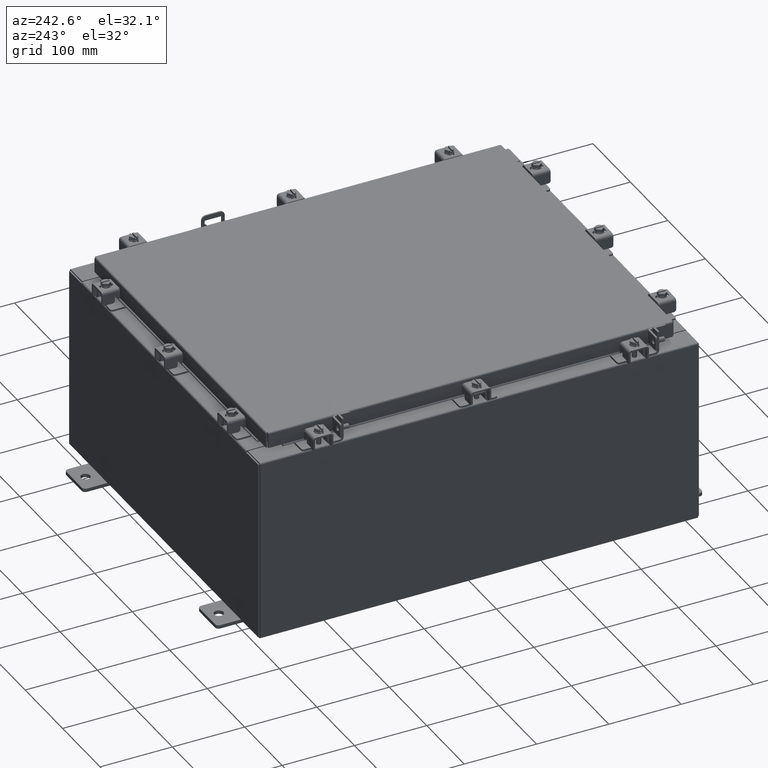
[diagram: clean part render]
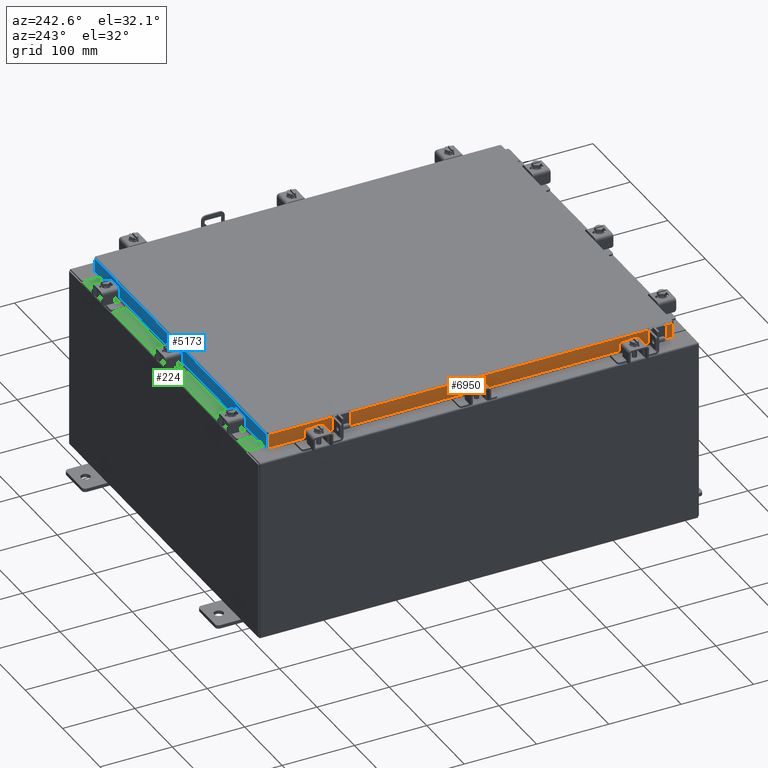
[diagram: same view with three faces highlighted in distinct colors, each labeled with its STEP entity id]
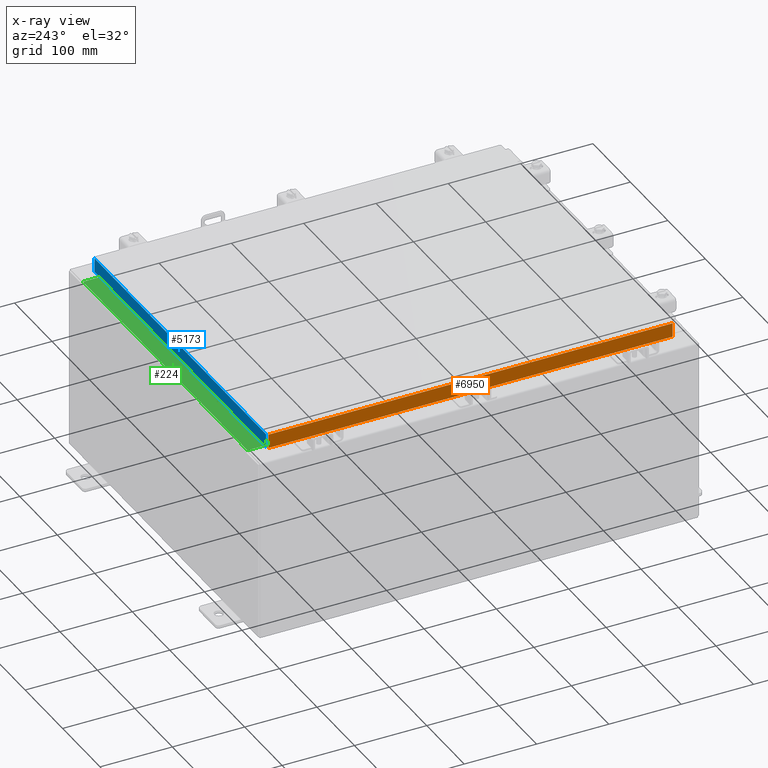
[diagram: x-ray of the same camera — body ghosted, the three highlighted faces saturated]
A machine part, auxiliary view with three faces highlighted in distinct colors.
The next image is the same camera in x-ray (body ghosted, the three faces saturated) — at least one of them is partly hidden behind the body in this view.
Their STEP definitions:

[orange] entity #6950 — the highlighted planar face has unit normal (1, 0, -0).
#296 = EDGE_CURVE ( 'NONE', #16430, #1244, #375, .T. ) ;
#297 = LINE ( 'NONE', #8508, #12650 ) ;
#375 = LINE ( 'NONE', #1042, #4153 ) ;
#773 = ORIENTED_EDGE ( 'NONE', *, *, #6685, .F. ) ;
#968 = CARTESIAN_POINT ( 'NONE',  ( -9.094000000000001200, -11.00515786437626700, -0.07470000000000015500 ) ) ;
#1042 = CARTESIAN_POINT ( 'NONE',  ( -9.093999999999995900, -10.25515786437626900, -0.8499999999999999800 ) ) ;
#1244 = VERTEX_POINT ( 'NONE', #10325 ) ;
#1269 = DIRECTION ( 'NONE',  ( 4.379057701015054300E-047, 1.000000000000000000, 1.169666303398706600E-016 ) ) ;
#1846 = CARTESIAN_POINT ( 'NONE',  ( -9.094000000000004700, -11.00515786437626200, -0.8499999999999999800 ) ) ;
#1943 = CARTESIAN_POINT ( 'NONE',  ( -9.094000000000001200, -11.00515786437626900, -0.08770000000000026400 ) ) ;
#2232 = CARTESIAN_POINT ( 'NONE',  ( -9.094000000000004700, -11.09400000000000100, -0.8499999999999999800 ) ) ;
#2554 = DIRECTION ( 'NONE',  ( 1.000000000000000000, 3.297150052053607100E-031, -2.818880942772360100E-015 ) ) ;
#2573 = DIRECTION ( 'NONE',  ( -2.818880942772360100E-015, 6.982962677686267500E-015, -1.000000000000000000 ) ) ;
#2717 = EDGE_CURVE ( 'NONE', #1244, #13236, #3496, .T. ) ;
#2952 = VERTEX_POINT ( 'NONE', #17685 ) ;
#3075 = EDGE_CURVE ( 'NONE', #2952, #13236, #3370, .T. ) ;
#3370 = LINE ( 'NONE', #10121, #3896 ) ;
#3496 = LINE ( 'NONE', #2232, #20074 ) ;
#3661 = DIRECTION ( 'NONE',  ( -0.0000000000000000000, 1.000000000000000000, -0.0000000000000000000 ) ) ;
#3896 = VECTOR ( 'NONE', #9876, 39.37007874015748100 ) ;
#4153 = VECTOR ( 'NONE', #3661, 39.37007874015748100 ) ;
#4170 = EDGE_CURVE ( 'NONE', #17787, #20709, #15419, .T. ) ;
#5703 = ORIENTED_EDGE ( 'NONE', *, *, #4170, .F. ) ;
#6685 = EDGE_CURVE ( 'NONE', #20709, #16430, #8920, .T. ) ;
#6950 = ADVANCED_FACE ( 'NONE', ( #9167 ), #15324, .F. ) ;
#8385 = EDGE_CURVE ( 'NONE', #2952, #17787, #297, .T. ) ;
#8400 = VECTOR ( 'NONE', #14547, 39.37007874015748100 ) ;
#8508 = CARTESIAN_POINT ( 'NONE',  ( -9.094000000000001200, -11.09399999999999900, -0.08770000000000026400 ) ) ;
#8920 = LINE ( 'NONE', #19341, #8400 ) ;
#9167 = FACE_OUTER_BOUND ( 'NONE', #15842, .T. ) ;
#9876 = DIRECTION ( 'NONE',  ( -2.818880942772360100E-015, 6.982962677686267500E-015, -1.000000000000000000 ) ) ;
#10121 = CARTESIAN_POINT ( 'NONE',  ( -9.094000000000001200, 11.00515786437626900, 1.027174845617763000E-013 ) ) ;
#10325 = CARTESIAN_POINT ( 'NONE',  ( -9.093999999999995900, 10.25515786437626900, -0.8499999999999999800 ) ) ;
#10713 = VECTOR ( 'NONE', #2573, 39.37007874015748100 ) ;
#11306 = AXIS2_PLACEMENT_3D ( 'NONE', #12233, #2554, #13787 ) ;
#12233 = CARTESIAN_POINT ( 'NONE',  ( -9.094000000000001200, 0.0000000000000000000, 2.622574073917692700E-014 ) ) ;
#12650 = VECTOR ( 'NONE', #18080, 39.37007874015748100 ) ;
#13236 = VERTEX_POINT ( 'NONE', #13474 ) ;
#13474 = CARTESIAN_POINT ( 'NONE',  ( -9.094000000000004700, 11.00515786437627400, -0.8499999999999977600 ) ) ;
#13787 = DIRECTION ( 'NONE',  ( -2.818880942772360100E-015, 0.0000000000000000000, -1.000000000000000000 ) ) ;
#14059 = ORIENTED_EDGE ( 'NONE', *, *, #2717, .F. ) ;
#14547 = DIRECTION ( 'NONE',  ( 4.379057701015054300E-047, 1.000000000000000000, 1.169666303398706600E-016 ) ) ;
#15324 = PLANE ( 'NONE',  #11306 ) ;
#15419 = LINE ( 'NONE', #968, #10713 ) ;
#15842 = EDGE_LOOP ( 'NONE', ( #20442, #17668, #14059, #18491, #773, #5703 ) ) ;
#16056 = CARTESIAN_POINT ( 'NONE',  ( -9.093999999999995900, -10.25515786437626900, -0.8499999999999999800 ) ) ;
#16430 = VERTEX_POINT ( 'NONE', #16056 ) ;
#17668 = ORIENTED_EDGE ( 'NONE', *, *, #3075, .T. ) ;
#17685 = CARTESIAN_POINT ( 'NONE',  ( -9.094000000000001200, 11.00515786437626900, -0.08770000000000026400 ) ) ;
#17787 = VERTEX_POINT ( 'NONE', #1943 ) ;
#18080 = DIRECTION ( 'NONE',  ( 3.297150052053607100E-031, -1.000000000000000000, -8.987264781119274900E-046 ) ) ;
#18491 = ORIENTED_EDGE ( 'NONE', *, *, #296, .F. ) ;
#19341 = CARTESIAN_POINT ( 'NONE',  ( -9.094000000000004700, -11.09400000000000100, -0.8499999999999999800 ) ) ;
#20074 = VECTOR ( 'NONE', #1269, 39.37007874015748100 ) ;
#20442 = ORIENTED_EDGE ( 'NONE', *, *, #8385, .F. ) ;
#20709 = VERTEX_POINT ( 'NONE', #1846 ) ;

[blue] entity #5173 — the highlighted planar face has unit normal (0, -1, -0).
#264 = DIRECTION ( 'NONE',  ( 1.000000000000000000, -4.379057701015053300E-047, 1.201604571657912200E-016 ) ) ;
#475 = CARTESIAN_POINT ( 'NONE',  ( -9.094000000000001200, 11.09400000000000300, -0.8500000000000020900 ) ) ;
#1934 = VECTOR ( 'NONE', #16373, 39.37007874015748100 ) ;
#3690 = DIRECTION ( 'NONE',  ( 1.000000000000000000, -4.379057701015053300E-047, 1.201604571657912200E-016 ) ) ;
#4083 = CARTESIAN_POINT ( 'NONE',  ( 9.005157864376267100, 11.09400000000000300, -0.8499999999999999800 ) ) ;
#4095 = ORIENTED_EDGE ( 'NONE', *, *, #13194, .F. ) ;
#4192 = LINE ( 'NONE', #17691, #9011 ) ;
#4323 = FACE_OUTER_BOUND ( 'NONE', #11540, .T. ) ;
#5086 = CARTESIAN_POINT ( 'NONE',  ( -9.005157864376268900, 11.09400000000000100, -0.08770000000000026400 ) ) ;
#5173 = ADVANCED_FACE ( 'NONE', ( #4323 ), #15070, .F. ) ;
#7029 = VECTOR ( 'NONE', #15330, 39.37007874015748100 ) ;
#7076 = DIRECTION ( 'NONE',  ( 0.0000000000000000000, 2.818880942772352600E-015, -1.000000000000000000 ) ) ;
#7599 = LINE ( 'NONE', #11769, #18884 ) ;
#9011 = VECTOR ( 'NONE', #19308, 39.37007874015748100 ) ;
#9137 = LINE ( 'NONE', #13081, #16625 ) ;
#9316 = EDGE_CURVE ( 'NONE', #20093, #15526, #11379, .T. ) ;
#10297 = CARTESIAN_POINT ( 'NONE',  ( 0.0000000000000000000, 11.09400000000000100, 3.059669752903974500E-014 ) ) ;
#10309 = ORIENTED_EDGE ( 'NONE', *, *, #19392, .F. ) ;
#10344 = CARTESIAN_POINT ( 'NONE',  ( 8.255157864376263500, 11.09399999999999900, -0.8500000000000065300 ) ) ;
#10544 = CARTESIAN_POINT ( 'NONE',  ( -9.005157864376268900, 11.09400000000000100, -0.07470000000000015500 ) ) ;
#10708 = VECTOR ( 'NONE', #3690, 39.37007874015748100 ) ;
#11375 = EDGE_CURVE ( 'NONE', #12790, #12113, #4192, .T. ) ;
#11379 = LINE ( 'NONE', #10544, #7029 ) ;
#11540 = EDGE_LOOP ( 'NONE', ( #4095, #14415, #17455, #12621, #10309, #16494 ) ) ;
#11769 = CARTESIAN_POINT ( 'NONE',  ( -9.094000000000001200, 11.09400000000000100, -0.08770000000000026400 ) ) ;
#12113 = VERTEX_POINT ( 'NONE', #10344 ) ;
#12621 = ORIENTED_EDGE ( 'NONE', *, *, #11375, .F. ) ;
#12790 = VERTEX_POINT ( 'NONE', #13638 ) ;
#13081 = CARTESIAN_POINT ( 'NONE',  ( -9.094000000000001200, 11.09400000000000300, -0.8500000000000020900 ) ) ;
#13097 = EDGE_CURVE ( 'NONE', #12113, #15820, #9137, .T. ) ;
#13194 = EDGE_CURVE ( 'NONE', #13839, #20093, #7599, .T. ) ;
#13638 = CARTESIAN_POINT ( 'NONE',  ( -8.255157864376267100, 11.09399999999999900, -0.8500000000000065300 ) ) ;
#13839 = VERTEX_POINT ( 'NONE', #15979 ) ;
#14415 = ORIENTED_EDGE ( 'NONE', *, *, #15632, .T. ) ;
#14727 = LINE ( 'NONE', #19601, #1934 ) ;
#14888 = LINE ( 'NONE', #475, #10708 ) ;
#15070 = PLANE ( 'NONE',  #16917 ) ;
#15330 = DIRECTION ( 'NONE',  ( -0.0000000000000000000, 2.818880942772352600E-015, -1.000000000000000000 ) ) ;
#15526 = VERTEX_POINT ( 'NONE', #19328 ) ;
#15632 = EDGE_CURVE ( 'NONE', #13839, #15820, #14727, .T. ) ;
#15820 = VERTEX_POINT ( 'NONE', #4083 ) ;
#15979 = CARTESIAN_POINT ( 'NONE',  ( 9.005157864376267100, 11.09400000000000100, -0.08770000000000245700 ) ) ;
#16373 = DIRECTION ( 'NONE',  ( 0.0000000000000000000, 2.818880942772352600E-015, -1.000000000000000000 ) ) ;
#16494 = ORIENTED_EDGE ( 'NONE', *, *, #9316, .F. ) ;
#16625 = VECTOR ( 'NONE', #264, 39.37007874015748100 ) ;
#16715 = DIRECTION ( 'NONE',  ( 3.387180227794624200E-031, -1.000000000000000000, -2.818880942772352600E-015 ) ) ;
#16917 = AXIS2_PLACEMENT_3D ( 'NONE', #10297, #16715, #7076 ) ;
#17455 = ORIENTED_EDGE ( 'NONE', *, *, #13097, .F. ) ;
#17691 = CARTESIAN_POINT ( 'NONE',  ( -8.255157864376267100, 11.09399999999999900, -0.8500000000000065300 ) ) ;
#18077 = DIRECTION ( 'NONE',  ( -1.000000000000000000, -6.774360455589248400E-031, 1.201604571657912200E-016 ) ) ;
#18884 = VECTOR ( 'NONE', #18077, 39.37007874015748100 ) ;
#19308 = DIRECTION ( 'NONE',  ( 1.000000000000000000, -0.0000000000000000000, -0.0000000000000000000 ) ) ;
#19328 = CARTESIAN_POINT ( 'NONE',  ( -9.005157864376268900, 11.09400000000000300, -0.8500000000000020900 ) ) ;
#19392 = EDGE_CURVE ( 'NONE', #15526, #12790, #14888, .T. ) ;
#19601 = CARTESIAN_POINT ( 'NONE',  ( 9.005157864376267100, 11.09400000000000100, 3.059669752903974500E-014 ) ) ;
#20093 = VERTEX_POINT ( 'NONE', #5086 ) ;

[green] entity #224 — the highlighted planar face has unit normal (0, 0, 1).
#224 = ADVANCED_FACE ( 'NONE', ( #1410 ), #3592, .T. ) ;
#381 = DIRECTION ( 'NONE',  ( 0.0000000000000000000, -1.000000000000000000, 3.566381192773190000E-015 ) ) ;
#1180 = ORIENTED_EDGE ( 'NONE', *, *, #16847, .F. ) ;
#1410 = FACE_OUTER_BOUND ( 'NONE', #6434, .T. ) ;
#1961 = LINE ( 'NONE', #17423, #14754 ) ;
#2631 = VECTOR ( 'NONE', #5874, 39.37007874015748100 ) ;
#3592 = PLANE ( 'NONE',  #7420 ) ;
#4563 = EDGE_CURVE ( 'NONE', #18456, #14288, #19667, .T. ) ;
#5874 = DIRECTION ( 'NONE',  ( -0.0000000000000000000, -1.000000000000000000, 3.566381192773190000E-015 ) ) ;
#6434 = EDGE_LOOP ( 'NONE', ( #14538, #6980, #1180, #13530 ) ) ;
#6949 = CARTESIAN_POINT ( 'NONE',  ( 5.547702242495411600E-018, -0.08770000000000081900, 5.000000000000000000 ) ) ;
#6980 = ORIENTED_EDGE ( 'NONE', *, *, #7524, .F. ) ;
#7078 = LINE ( 'NONE', #9033, #15105 ) ;
#7420 = AXIS2_PLACEMENT_3D ( 'NONE', #10077, #10287, #381 ) ;
#7524 = EDGE_CURVE ( 'NONE', #13200, #19209, #7078, .T. ) ;
#7826 = DIRECTION ( 'NONE',  ( -0.0000000000000000000, 1.000000000000000000, -3.566381192773190000E-015 ) ) ;
#9033 = CARTESIAN_POINT ( 'NONE',  ( 8.637200000000000000, -1.287299999999999900, 5.000000000000003600 ) ) ;
#10077 = CARTESIAN_POINT ( 'NONE',  ( 0.0000000000000000000, 1.782631094477737600E-014, 5.000000000000000000 ) ) ;
#10287 = DIRECTION ( 'NONE',  ( 0.0000000000000000000, 3.566381192773190000E-015, 1.000000000000000000 ) ) ;
#10401 = EDGE_CURVE ( 'NONE', #19209, #14288, #1961, .T. ) ;
#11409 = CARTESIAN_POINT ( 'NONE',  ( 8.637200000000000000, -0.08770000000000047200, 5.000000000000000000 ) ) ;
#12281 = DIRECTION ( 'NONE',  ( -1.000000000000000000, 0.0000000000000000000, 0.0000000000000000000 ) ) ;
#12409 = CARTESIAN_POINT ( 'NONE',  ( -8.637200000000000000, -0.08770000000000081900, 5.000000000000000000 ) ) ;
#13200 = VERTEX_POINT ( 'NONE', #18157 ) ;
#13530 = ORIENTED_EDGE ( 'NONE', *, *, #4563, .T. ) ;
#14182 = CARTESIAN_POINT ( 'NONE',  ( -8.637200000000000000, -1.287299999999999200, 5.000000000000004400 ) ) ;
#14288 = VERTEX_POINT ( 'NONE', #12409 ) ;
#14538 = ORIENTED_EDGE ( 'NONE', *, *, #10401, .F. ) ;
#14754 = VECTOR ( 'NONE', #7826, 39.37007874015748100 ) ;
#15105 = VECTOR ( 'NONE', #12281, 39.37007874015748100 ) ;
#16589 = DIRECTION ( 'NONE',  ( -1.000000000000000000, -6.325772226333218300E-017, 2.256011509776178200E-031 ) ) ;
#16847 = EDGE_CURVE ( 'NONE', #18456, #13200, #19204, .T. ) ;
#17085 = CARTESIAN_POINT ( 'NONE',  ( 8.637200000000000000, -1.300299999999999800, 5.000000000000004400 ) ) ;
#17423 = CARTESIAN_POINT ( 'NONE',  ( -8.637200000000000000, -0.07469999999999973900, 5.000000000000000000 ) ) ;
#18157 = CARTESIAN_POINT ( 'NONE',  ( 8.637200000000000000, -1.287299999999999900, 5.000000000000004400 ) ) ;
#18456 = VERTEX_POINT ( 'NONE', #11409 ) ;
#19163 = VECTOR ( 'NONE', #16589, 39.37007874015748100 ) ;
#19204 = LINE ( 'NONE', #17085, #2631 ) ;
#19209 = VERTEX_POINT ( 'NONE', #14182 ) ;
#19667 = LINE ( 'NONE', #6949, #19163 ) ;